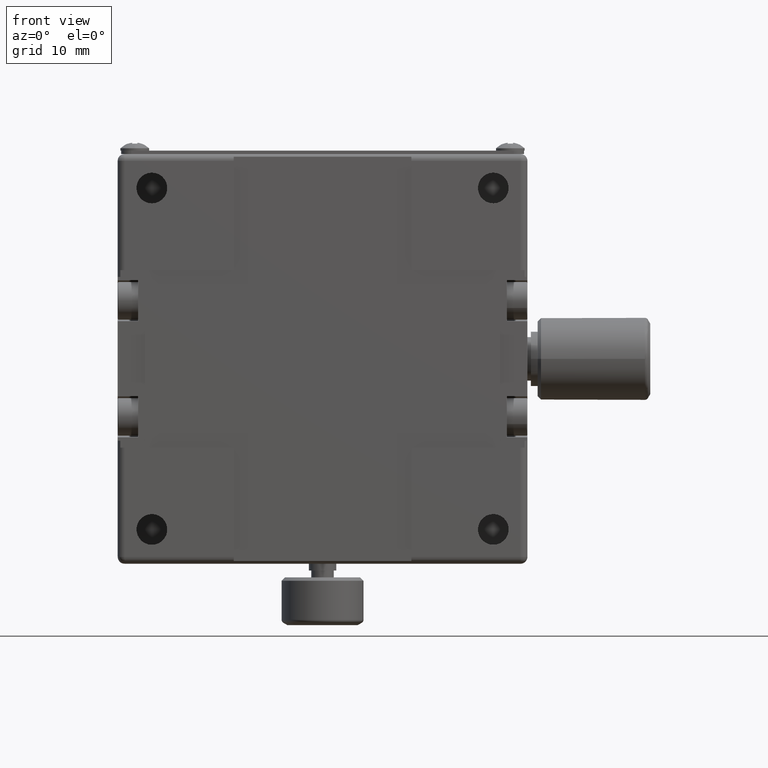
[diagram: clean part render]
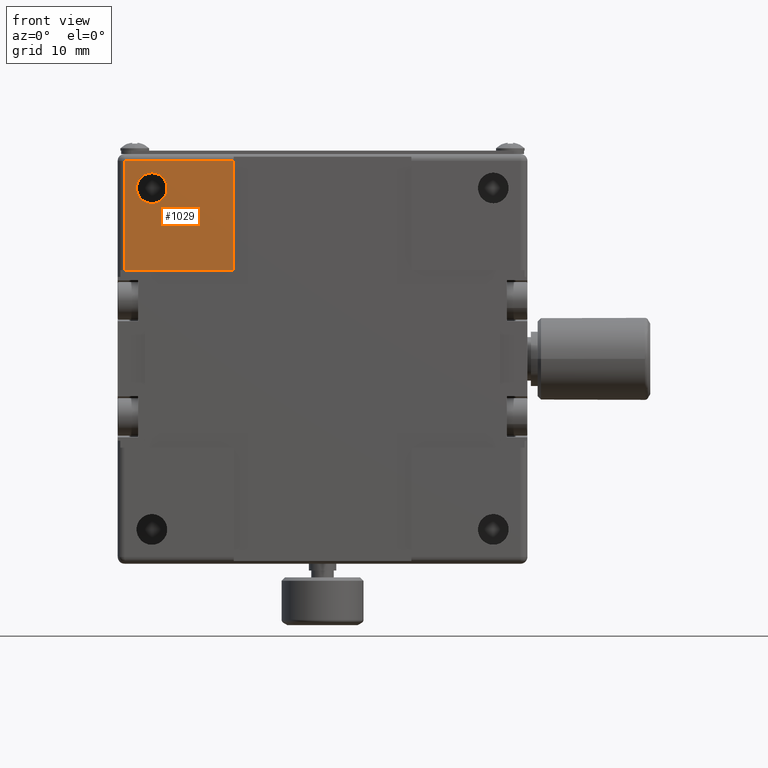
[diagram: same view with one face highlighted and labeled with its STEP entity id]
A machine part, front view. The second image highlights one B-rep face of the part: STEP entity #1029.
In plain terms, the highlighted planar face has unit normal (-0, 1, 0).
Its self-contained STEP definition (entity closure, byte-faithful):
#319 = CARTESIAN_POINT ( 'NONE',  ( -12.79705733130390044, -25.39231131468095271, -30.00000000000000000 ) ) ;
#555 = CARTESIAN_POINT ( 'NONE',  ( -28.79705733130390044, -25.39231131468095271, 30.00000000000000000 ) ) ;
#1029 = ADVANCED_FACE ( 'NONE', ( #36189, #10282 ), #35830, .F. ) ;
#1534 = EDGE_CURVE ( 'NONE', #15487, #16628, #19361, .T. ) ;
#2786 = DIRECTION ( 'NONE',  ( 0.000000000000000000, 0.000000000000000000, -1.000000000000000000 ) ) ;
#2814 = EDGE_CURVE ( 'NONE', #6427, #24532, #8720, .T. ) ;
#3817 = CARTESIAN_POINT ( 'NONE',  ( -24.79705733130255396, -25.39231131468210023, 25.00000000000000000 ) ) ;
#5502 = DIRECTION ( 'NONE',  ( -1.000000000000000000, 0.000000000000000000, 0.000000000000000000 ) ) ;
#6070 = DIRECTION ( 'NONE',  ( 0.000000000000000000, 1.000000000000000000, 0.000000000000000000 ) ) ;
#6427 = VERTEX_POINT ( 'NONE', #6719 ) ;
#6615 = DIRECTION ( 'NONE',  ( 0.000000000000000000, 0.000000000000000000, 1.000000000000000000 ) ) ;
#6719 = CARTESIAN_POINT ( 'NONE',  ( -12.79705733130390044, -25.39231131468095271, 13.00000000000000000 ) ) ;
#8079 = ORIENTED_EDGE ( 'NONE', *, *, #14598, .T. ) ;
#8653 = CARTESIAN_POINT ( 'NONE',  ( -28.79705733130390044, -25.39231131468095271, 29.00000000000000000 ) ) ;
#8720 = LINE ( 'NONE', #319, #17638 ) ;
#9562 = CARTESIAN_POINT ( 'NONE',  ( -24.79705733130255396, -25.39231131468210023, 22.75000000000000000 ) ) ;
#9604 = DIRECTION ( 'NONE',  ( 0.000000000000000000, 1.000000000000000000, 0.000000000000000000 ) ) ;
#10282 = FACE_OUTER_BOUND ( 'NONE', #33616, .T. ) ;
#10657 = DIRECTION ( 'NONE',  ( -2.312964634635744929E-16, 1.000000000000000000, 0.000000000000000000 ) ) ;
#11160 = AXIS2_PLACEMENT_3D ( 'NONE', #20778, #9604, #6615 ) ;
#12046 = ORIENTED_EDGE ( 'NONE', *, *, #34774, .T. ) ;
#13000 = CARTESIAN_POINT ( 'NONE',  ( -28.79705733130390044, -25.39231131468095271, 13.00000000000000000 ) ) ;
#13378 = CARTESIAN_POINT ( 'NONE',  ( -24.79705733130255396, -25.39231131468210023, 27.25000000000000000 ) ) ;
#14598 = EDGE_CURVE ( 'NONE', #28504, #33559, #32071, .T. ) ;
#15487 = VERTEX_POINT ( 'NONE', #9562 ) ;
#16628 = VERTEX_POINT ( 'NONE', #13378 ) ;
#17056 = EDGE_LOOP ( 'NONE', ( #12046, #29891 ) ) ;
#17638 = VECTOR ( 'NONE', #23273, 1000.000000000000000 ) ;
#19361 = CIRCLE ( 'NONE', #21177, 2.249999999999998668 ) ;
#19598 = CARTESIAN_POINT ( 'NONE',  ( -29.79705733130390044, -25.39231131468095271, 30.00000000000000000 ) ) ;
#20648 = CIRCLE ( 'NONE', #11160, 2.249999999999998668 ) ;
#20778 = CARTESIAN_POINT ( 'NONE',  ( -24.79705733130255396, -25.39231131468210023, 25.00000000000000000 ) ) ;
#21177 = AXIS2_PLACEMENT_3D ( 'NONE', #3817, #6070, #29213 ) ;
#21497 = LINE ( 'NONE', #32884, #28319 ) ;
#22016 = DIRECTION ( 'NONE',  ( 1.000000000000000000, 2.312964634635744929E-16, 0.000000000000000000 ) ) ;
#22662 = CARTESIAN_POINT ( 'NONE',  ( 30.20294266869610311, -25.39231131468095271, 13.00000000000000000 ) ) ;
#23273 = DIRECTION ( 'NONE',  ( 0.000000000000000000, 0.000000000000000000, 1.000000000000000000 ) ) ;
#23547 = AXIS2_PLACEMENT_3D ( 'NONE', #19598, #10657, #22016 ) ;
#23848 = EDGE_CURVE ( 'NONE', #24532, #28504, #21497, .T. ) ;
#24532 = VERTEX_POINT ( 'NONE', #36268 ) ;
#27464 = DIRECTION ( 'NONE',  ( -1.000000000000000000, -2.312964634635744929E-16, 0.000000000000000000 ) ) ;
#28319 = VECTOR ( 'NONE', #27464, 1000.000000000000000 ) ;
#28504 = VERTEX_POINT ( 'NONE', #8653 ) ;
#29213 = DIRECTION ( 'NONE',  ( 0.000000000000000000, 0.000000000000000000, 1.000000000000000000 ) ) ;
#29358 = VECTOR ( 'NONE', #2786, 1000.000000000000000 ) ;
#29891 = ORIENTED_EDGE ( 'NONE', *, *, #1534, .T. ) ;
#31791 = EDGE_CURVE ( 'NONE', #6427, #33559, #36636, .T. ) ;
#32071 = LINE ( 'NONE', #555, #29358 ) ;
#32344 = VECTOR ( 'NONE', #5502, 1000.000000000000000 ) ;
#32351 = ORIENTED_EDGE ( 'NONE', *, *, #31791, .F. ) ;
#32724 = ORIENTED_EDGE ( 'NONE', *, *, #2814, .T. ) ;
#32884 = CARTESIAN_POINT ( 'NONE',  ( -29.79705733130390044, -25.39231131468095271, 29.00000000000000000 ) ) ;
#33559 = VERTEX_POINT ( 'NONE', #13000 ) ;
#33616 = EDGE_LOOP ( 'NONE', ( #35233, #8079, #32351, #32724 ) ) ;
#34774 = EDGE_CURVE ( 'NONE', #16628, #15487, #20648, .T. ) ;
#35233 = ORIENTED_EDGE ( 'NONE', *, *, #23848, .T. ) ;
#35830 = PLANE ( 'NONE',  #23547 ) ;
#36189 = FACE_BOUND ( 'NONE', #17056, .T. ) ;
#36268 = CARTESIAN_POINT ( 'NONE',  ( -12.79705733130390044, -25.39231131468095271, 29.00000000000000000 ) ) ;
#36636 = LINE ( 'NONE', #22662, #32344 ) ;